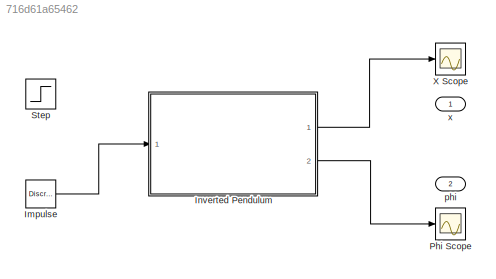
MODEL slx_716d61a65462
KIND model
CONFIG AbsTol = auto
CONFIG FixedStep = auto
CONFIG MaxStep = auto
CONFIG MinStep = auto
CONFIG RelTol = 1e-3
CONFIG SampleTimeConstraint = Unconstrained
CONFIG Solver = ode45
CONFIG SolverMode = Auto
CONFIG SolverName = ode45
CONFIG StartTime = 0.0
CONFIG StopTime = 10
BLOCK [Reference] Impulse  REF=dspsrcs4/Discrete 
Impulse
  Delay = 0
  FrameSample = 1
  LastOutDataTypeStr = double
  OutDataTypeStr = double
  Ports = [0, 1]
  SampleTime = 1
  SourceBlock = dspsrcs4/Discrete \nImpulse
  SourceType = Discrete Impulse
  additionalParams = off
  allowOverrides = on
  dataType = double
  fracBitsMode = Best precision
  isSigned = on
  numFracBits = 15
  udDataType = sfix(16)
  wordLen = 16
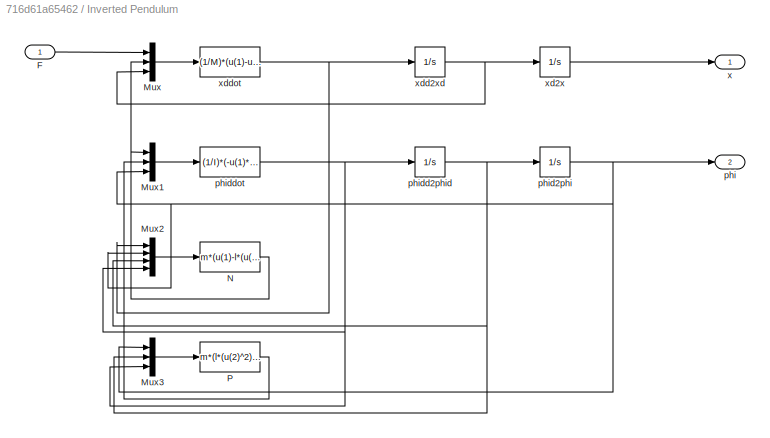
BLOCK [SubSystem] Inverted Pendulum
  Ports = [1, 2]
  RequestExecContextInheritance = off
BLOCK [Inport] Inverted Pendulum/F
  IconDisplay = Port number
BLOCK [Mux] Inverted Pendulum/Mux
  DisplayOption = bar
  Inputs = 3
  Ports = [3, 1]
BLOCK [Mux] Inverted Pendulum/Mux1
  DisplayOption = bar
  Inputs = 3
  Ports = [3, 1]
BLOCK [Mux] Inverted Pendulum/Mux2
  DisplayOption = bar
  Ports = [4, 1]
BLOCK [Mux] Inverted Pendulum/Mux3
  DisplayOption = bar
  Inputs = 3
  Ports = [3, 1]
BLOCK [Fcn] Inverted Pendulum/N
  Expr = m*(u(1)-l*(u(3)^2)*sin(u(2))+l*u(4)*cos(u(2)))
BLOCK [Fcn] Inverted Pendulum/P
  Expr = m*(l*(u(2)^2)*cos(u(1))+l*u(3)*sin(u(1)))+g
BLOCK [Outport] Inverted Pendulum/phi
  IconDisplay = Port number
  Port = 2
BLOCK [Integrator] Inverted Pendulum/phid2phi
  Ports = [1, 1]
BLOCK [Integrator] Inverted Pendulum/phidd2phid
  Ports = [1, 1]
BLOCK [Fcn] Inverted Pendulum/phiddot
  Expr = (1/I)*(-u(1)*l*cos(u(3))-u(2)*l*sin(u(3)))
BLOCK [Outport] Inverted Pendulum/x
  IconDisplay = Port number
BLOCK [Integrator] Inverted Pendulum/xd2x
  Ports = [1, 1]
BLOCK [Integrator] Inverted Pendulum/xdd2xd
  Ports = [1, 1]
BLOCK [Fcn] Inverted Pendulum/xddot
  Expr = (1/M)*(u(1)-u(2)-b*u(3))
BLOCK [Scope] Phi Scope
  Floating = off
  NumInputPorts = 1
  Ports = [1]
  SaveName = ScopeData1
BLOCK [Step] Step
  SampleTime = 0
BLOCK [Scope] X Scope
  Floating = off
  NumInputPorts = 1
  Ports = [1]
  ZoomMode = yonly
BLOCK [Outport] phi
  IconDisplay = Port number
  Port = 2
BLOCK [Outport] x
  IconDisplay = Port number
LINE Impulse:1 -> Inverted Pendulum:1
LINE Inverted Pendulum/F:1 -> Inverted Pendulum/Mux:1
LINE Inverted Pendulum/Mux1:1 -> Inverted Pendulum/phiddot:1
LINE Inverted Pendulum/Mux2:1 -> Inverted Pendulum/N:1
LINE Inverted Pendulum/Mux3:1 -> Inverted Pendulum/P:1
LINE Inverted Pendulum/Mux:1 -> Inverted Pendulum/xddot:1
NET Inverted Pendulum/N:1 -> Inverted Pendulum/Mux1:1, Inverted Pendulum/Mux:2
LINE Inverted Pendulum/P:1 -> Inverted Pendulum/Mux1:2
NET Inverted Pendulum/phid2phi:1 -> Inverted Pendulum/Mux1:3, Inverted Pendulum/Mux2:2, Inverted Pendulum/Mux3:1, Inverted Pendulum/phi:1
NET Inverted Pendulum/phidd2phid:1 -> Inverted Pendulum/Mux2:3, Inverted Pendulum/Mux3:2, Inverted Pendulum/phid2phi:1
NET Inverted Pendulum/phiddot:1 -> Inverted Pendulum/Mux2:4, Inverted Pendulum/Mux3:3, Inverted Pendulum/phidd2phid:1
LINE Inverted Pendulum/xd2x:1 -> Inverted Pendulum/x:1
NET Inverted Pendulum/xdd2xd:1 -> Inverted Pendulum/Mux:3, Inverted Pendulum/xd2x:1
NET Inverted Pendulum/xddot:1 -> Inverted Pendulum/Mux2:1, Inverted Pendulum/xdd2xd:1
LINE Inverted Pendulum:1 -> X Scope:1
LINE Inverted Pendulum:2 -> Phi Scope:1
note: NET lines group one-source signal fan-out (src -> all destinations, sorted); 1:1 wires keep LINE
